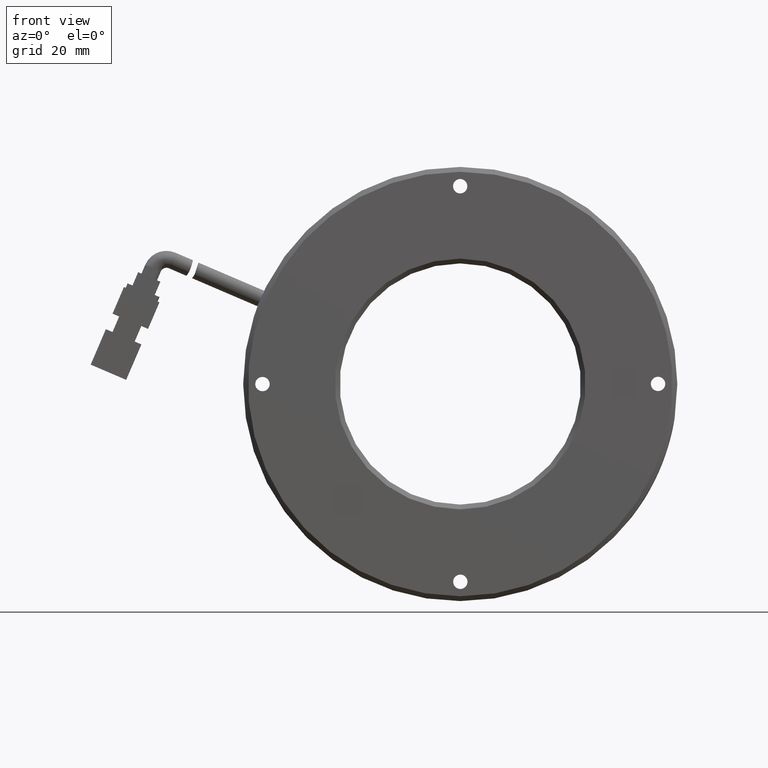
[diagram: clean part render]
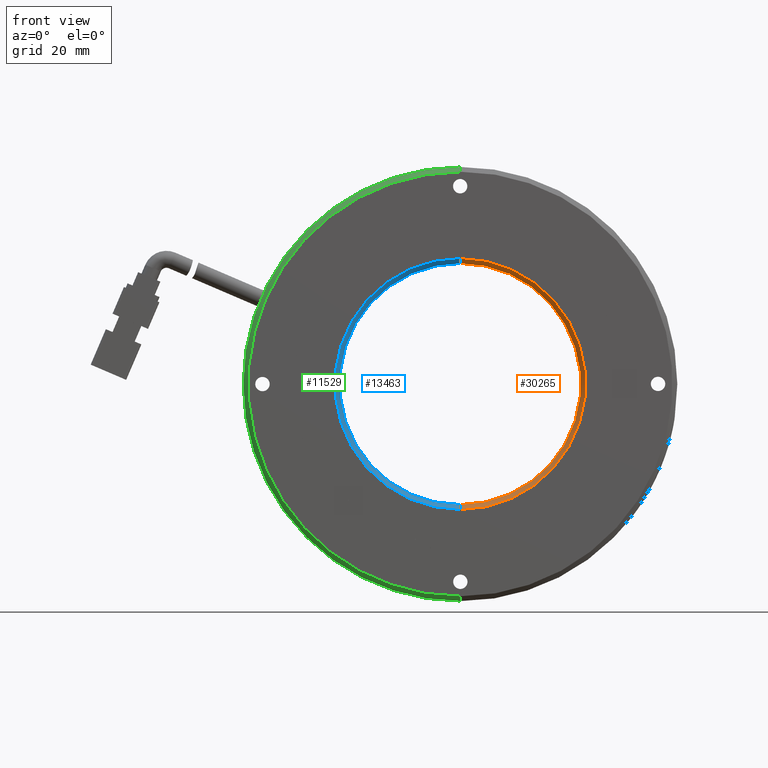
[diagram: same view with three faces highlighted in distinct colors, each labeled with its STEP entity id]
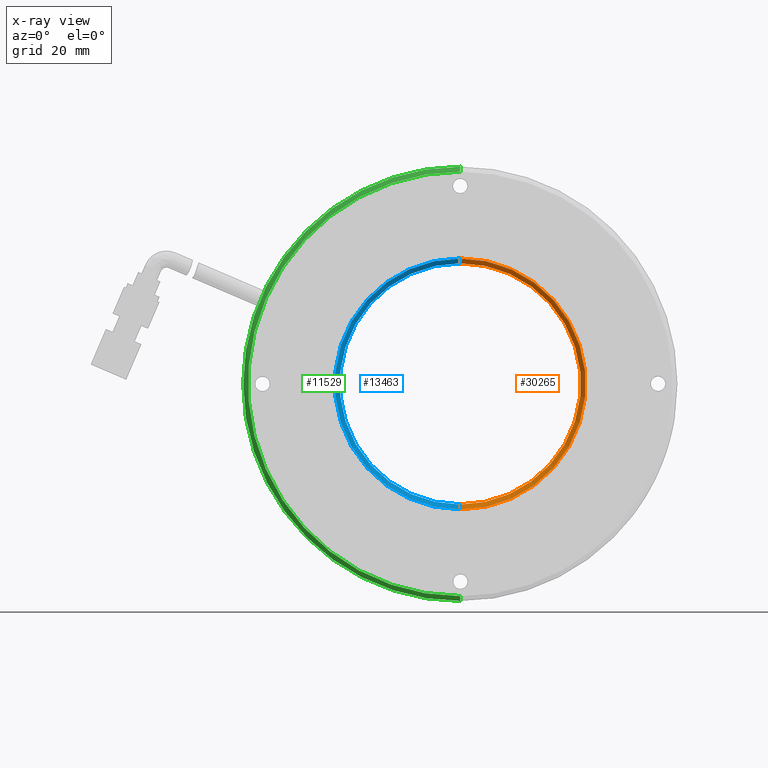
[diagram: x-ray of the same camera — body ghosted, the three highlighted faces saturated]
A machine part, front view with three faces highlighted in distinct colors.
The next image is the same camera in x-ray (body ghosted, the three faces saturated) — at least one of them is partly hidden behind the body in this view.
Their STEP definitions:

[orange] entity #30265 — the highlighted conical surface has half-angle 45 deg.
#2082 = VECTOR ( 'NONE', #17830, 1000.000000000000000 ) ;
#4259 = CARTESIAN_POINT ( 'NONE',  ( 3.571428571428568500, -0.3764478764478815200, 25.00000000000000000 ) ) ;
#4889 = CARTESIAN_POINT ( 'NONE',  ( 3.571428571428568500, -1.376447876447879400, 25.99999999999998200 ) ) ;
#7097 = VERTEX_POINT ( 'NONE', #30295 ) ;
#7134 = EDGE_CURVE ( 'NONE', #32075, #7097, #18878, .T. ) ;
#8187 = DIRECTION ( 'NONE',  ( 8.659560562354857700E-017, -0.7071067811865536800, 0.7071067811865414700 ) ) ;
#11405 = LINE ( 'NONE', #40071, #2082 ) ;
#11937 = CARTESIAN_POINT ( 'NONE',  ( 3.571428571428565800, -0.3764478764478815200, 0.0000000000000000000 ) ) ;
#12489 = DIRECTION ( 'NONE',  ( 0.0000000000000000000, -1.000000000000000000, 0.0000000000000000000 ) ) ;
#12859 = AXIS2_PLACEMENT_3D ( 'NONE', #37086, #18137, #40227 ) ;
#15088 = DIRECTION ( 'NONE',  ( 0.0000000000000000000, -3.469446951953614200E-017, -1.000000000000000000 ) ) ;
#15972 = ORIENTED_EDGE ( 'NONE', *, *, #22853, .T. ) ;
#17387 = AXIS2_PLACEMENT_3D ( 'NONE', #25058, #12489, #25192 ) ;
#17830 = DIRECTION ( 'NONE',  ( 0.0000000000000000000, -0.7071067811865536800, -0.7071067811865414700 ) ) ;
#17882 = VECTOR ( 'NONE', #8187, 1000.000000000000000 ) ;
#18137 = DIRECTION ( 'NONE',  ( 0.0000000000000000000, -1.000000000000000000, 0.0000000000000000000 ) ) ;
#18799 = ORIENTED_EDGE ( 'NONE', *, *, #20752, .F. ) ;
#18878 = LINE ( 'NONE', #4889, #17882 ) ;
#19963 = VERTEX_POINT ( 'NONE', #30981 ) ;
#20752 = EDGE_CURVE ( 'NONE', #22184, #32075, #34404, .T. ) ;
#22184 = VERTEX_POINT ( 'NONE', #26959 ) ;
#22853 = EDGE_CURVE ( 'NONE', #19963, #7097, #25587, .T. ) ;
#24324 = CONICAL_SURFACE ( 'NONE', #17387, 25.99999999999998200, 0.7853981633974396200 ) ;
#25058 = CARTESIAN_POINT ( 'NONE',  ( 3.571428571428565800, -1.376447876447879400, 0.0000000000000000000 ) ) ;
#25192 = DIRECTION ( 'NONE',  ( 0.0000000000000000000, 0.0000000000000000000, -1.000000000000000000 ) ) ;
#25587 = CIRCLE ( 'NONE', #12859, 25.99999999999998200 ) ;
#26959 = CARTESIAN_POINT ( 'NONE',  ( 3.571428571428565800, -0.3764478764478824100, -25.00000000000000000 ) ) ;
#28936 = AXIS2_PLACEMENT_3D ( 'NONE', #11937, #34054, #15088 ) ;
#29640 = ORIENTED_EDGE ( 'NONE', *, *, #7134, .F. ) ;
#30265 = ADVANCED_FACE ( 'NONE', ( #36699 ), #24324, .F. ) ;
#30295 = CARTESIAN_POINT ( 'NONE',  ( 3.571428571428568500, -1.376447876447878900, 25.99999999999998200 ) ) ;
#30981 = CARTESIAN_POINT ( 'NONE',  ( 3.571428571428565800, -1.376447876447878900, -25.99999999999998200 ) ) ;
#32075 = VERTEX_POINT ( 'NONE', #4259 ) ;
#34054 = DIRECTION ( 'NONE',  ( 0.0000000000000000000, -1.000000000000000000, 0.0000000000000000000 ) ) ;
#34404 = CIRCLE ( 'NONE', #28936, 25.00000000000000000 ) ;
#34485 = EDGE_CURVE ( 'NONE', #22184, #19963, #11405, .T. ) ;
#36699 = FACE_OUTER_BOUND ( 'NONE', #38954, .T. ) ;
#36871 = ORIENTED_EDGE ( 'NONE', *, *, #34485, .T. ) ;
#37086 = CARTESIAN_POINT ( 'NONE',  ( 3.571428571428565800, -1.376447876447878900, 0.0000000000000000000 ) ) ;
#38954 = EDGE_LOOP ( 'NONE', ( #29640, #18799, #36871, #15972 ) ) ;
#40071 = CARTESIAN_POINT ( 'NONE',  ( 3.571428571428565800, -1.376447876447879400, -25.99999999999998200 ) ) ;
#40227 = DIRECTION ( 'NONE',  ( 0.0000000000000000000, 0.0000000000000000000, -1.000000000000000000 ) ) ;

[blue] entity #13463 — the highlighted conical surface has half-angle 45 deg.
#439 = EDGE_LOOP ( 'NONE', ( #31246, #38641, #674, #11110 ) ) ;
#647 = AXIS2_PLACEMENT_3D ( 'NONE', #16297, #13178, #10140 ) ;
#674 = ORIENTED_EDGE ( 'NONE', *, *, #34959, .T. ) ;
#1350 = DIRECTION ( 'NONE',  ( 0.0000000000000000000, 0.0000000000000000000, -1.000000000000000000 ) ) ;
#2082 = VECTOR ( 'NONE', #17830, 1000.000000000000000 ) ;
#2488 = CIRCLE ( 'NONE', #7452, 25.00000000000000000 ) ;
#4259 = CARTESIAN_POINT ( 'NONE',  ( 3.571428571428568500, -0.3764478764478815200, 25.00000000000000000 ) ) ;
#4889 = CARTESIAN_POINT ( 'NONE',  ( 3.571428571428568500, -1.376447876447879400, 25.99999999999998200 ) ) ;
#5566 = AXIS2_PLACEMENT_3D ( 'NONE', #39054, #20121, #1350 ) ;
#7097 = VERTEX_POINT ( 'NONE', #30295 ) ;
#7134 = EDGE_CURVE ( 'NONE', #32075, #7097, #18878, .T. ) ;
#7452 = AXIS2_PLACEMENT_3D ( 'NONE', #30707, #11745, #33876 ) ;
#8187 = DIRECTION ( 'NONE',  ( 8.659560562354857700E-017, -0.7071067811865536800, 0.7071067811865414700 ) ) ;
#10140 = DIRECTION ( 'NONE',  ( 0.0000000000000000000, 0.0000000000000000000, -1.000000000000000000 ) ) ;
#11110 = ORIENTED_EDGE ( 'NONE', *, *, #34485, .F. ) ;
#11405 = LINE ( 'NONE', #40071, #2082 ) ;
#11745 = DIRECTION ( 'NONE',  ( 0.0000000000000000000, -1.000000000000000000, 0.0000000000000000000 ) ) ;
#12161 = CONICAL_SURFACE ( 'NONE', #647, 25.99999999999998200, 0.7853981633974396200 ) ;
#13178 = DIRECTION ( 'NONE',  ( 0.0000000000000000000, -1.000000000000000000, 0.0000000000000000000 ) ) ;
#13463 = ADVANCED_FACE ( 'NONE', ( #32928 ), #12161, .F. ) ;
#16297 = CARTESIAN_POINT ( 'NONE',  ( 3.571428571428565800, -1.376447876447879400, 0.0000000000000000000 ) ) ;
#17830 = DIRECTION ( 'NONE',  ( 0.0000000000000000000, -0.7071067811865536800, -0.7071067811865414700 ) ) ;
#17882 = VECTOR ( 'NONE', #8187, 1000.000000000000000 ) ;
#18878 = LINE ( 'NONE', #4889, #17882 ) ;
#19963 = VERTEX_POINT ( 'NONE', #30981 ) ;
#20121 = DIRECTION ( 'NONE',  ( 0.0000000000000000000, -1.000000000000000000, 0.0000000000000000000 ) ) ;
#22184 = VERTEX_POINT ( 'NONE', #26959 ) ;
#26959 = CARTESIAN_POINT ( 'NONE',  ( 3.571428571428565800, -0.3764478764478824100, -25.00000000000000000 ) ) ;
#30295 = CARTESIAN_POINT ( 'NONE',  ( 3.571428571428568500, -1.376447876447878900, 25.99999999999998200 ) ) ;
#30707 = CARTESIAN_POINT ( 'NONE',  ( 3.571428571428565800, -0.3764478764478815200, 0.0000000000000000000 ) ) ;
#30981 = CARTESIAN_POINT ( 'NONE',  ( 3.571428571428565800, -1.376447876447878900, -25.99999999999998200 ) ) ;
#31246 = ORIENTED_EDGE ( 'NONE', *, *, #35144, .F. ) ;
#32075 = VERTEX_POINT ( 'NONE', #4259 ) ;
#32928 = FACE_OUTER_BOUND ( 'NONE', #439, .T. ) ;
#33876 = DIRECTION ( 'NONE',  ( 0.0000000000000000000, -3.469446951953614200E-017, -1.000000000000000000 ) ) ;
#34485 = EDGE_CURVE ( 'NONE', #22184, #19963, #11405, .T. ) ;
#34959 = EDGE_CURVE ( 'NONE', #7097, #19963, #39439, .T. ) ;
#35144 = EDGE_CURVE ( 'NONE', #32075, #22184, #2488, .T. ) ;
#38641 = ORIENTED_EDGE ( 'NONE', *, *, #7134, .T. ) ;
#39054 = CARTESIAN_POINT ( 'NONE',  ( 3.571428571428565800, -1.376447876447878900, 0.0000000000000000000 ) ) ;
#39439 = CIRCLE ( 'NONE', #5566, 25.99999999999998200 ) ;
#40071 = CARTESIAN_POINT ( 'NONE',  ( 3.571428571428565800, -1.376447876447879400, -25.99999999999998200 ) ) ;

[green] entity #11529 — the highlighted conical surface has half-angle 45 deg.
#3393 = DIRECTION ( 'NONE',  ( 0.0000000000000000000, 0.7071067811865526800, 0.7071067811865423500 ) ) ;
#4569 = VERTEX_POINT ( 'NONE', #24271 ) ;
#5408 = EDGE_CURVE ( 'NONE', #15334, #18380, #7289, .T. ) ;
#6604 = AXIS2_PLACEMENT_3D ( 'NONE', #33581, #14483, #14607 ) ;
#6973 = CIRCLE ( 'NONE', #33793, 44.99999999999999300 ) ;
#7289 = CIRCLE ( 'NONE', #31507, 44.00000000000000000 ) ;
#7478 = VECTOR ( 'NONE', #13320, 1000.000000000000000 ) ;
#8445 = DIRECTION ( 'NONE',  ( -0.0000000000000000000, -1.000000000000000000, -0.0000000000000000000 ) ) ;
#8838 = ORIENTED_EDGE ( 'NONE', *, *, #37006, .T. ) ;
#9058 = FACE_OUTER_BOUND ( 'NONE', #31148, .T. ) ;
#9626 = ORIENTED_EDGE ( 'NONE', *, *, #15716, .T. ) ;
#9657 = CARTESIAN_POINT ( 'NONE',  ( 3.571428571428565800, -1.376447876447878900, 44.00000000000000000 ) ) ;
#11529 = ADVANCED_FACE ( 'NONE', ( #9058 ), #37676, .T. ) ;
#13320 = DIRECTION ( 'NONE',  ( 8.659560562354870000E-017, 0.7071067811865526800, -0.7071067811865423500 ) ) ;
#13965 = DIRECTION ( 'NONE',  ( -0.0000000000000000000, 1.000000000000000000, 0.0000000000000000000 ) ) ;
#14014 = CARTESIAN_POINT ( 'NONE',  ( 3.571428571428565800, -1.376447876447878900, 0.0000000000000000000 ) ) ;
#14483 = DIRECTION ( 'NONE',  ( -0.0000000000000000000, 1.000000000000000000, 0.0000000000000000000 ) ) ;
#14607 = DIRECTION ( 'NONE',  ( 0.0000000000000000000, 0.0000000000000000000, 1.000000000000000000 ) ) ;
#15334 = VERTEX_POINT ( 'NONE', #39478 ) ;
#15360 = ORIENTED_EDGE ( 'NONE', *, *, #34262, .F. ) ;
#15716 = EDGE_CURVE ( 'NONE', #18380, #32443, #29662, .T. ) ;
#15825 = LINE ( 'NONE', #23227, #7478 ) ;
#18380 = VERTEX_POINT ( 'NONE', #9657 ) ;
#23041 = CARTESIAN_POINT ( 'NONE',  ( 3.571428571428571200, -0.3764478764478641500, 45.00000000000000000 ) ) ;
#23227 = CARTESIAN_POINT ( 'NONE',  ( 3.571428571428571200, -0.3764478764478635400, -45.00000000000000000 ) ) ;
#24271 = CARTESIAN_POINT ( 'NONE',  ( 3.571428571428565800, -0.3764478764478641500, -45.00000000000000000 ) ) ;
#27386 = CARTESIAN_POINT ( 'NONE',  ( 3.571428571428565800, -0.3764478764478641500, 0.0000000000000000000 ) ) ;
#28635 = CARTESIAN_POINT ( 'NONE',  ( 3.571428571428565800, -0.3764478764478635400, 45.00000000000000000 ) ) ;
#28709 = ORIENTED_EDGE ( 'NONE', *, *, #5408, .T. ) ;
#29662 = LINE ( 'NONE', #28635, #37053 ) ;
#30557 = DIRECTION ( 'NONE',  ( 0.0000000000000000000, 3.373073425510458600E-017, 1.000000000000000000 ) ) ;
#31148 = EDGE_LOOP ( 'NONE', ( #15360, #28709, #9626, #8838 ) ) ;
#31507 = AXIS2_PLACEMENT_3D ( 'NONE', #14014, #13965, #31938 ) ;
#31938 = DIRECTION ( 'NONE',  ( 0.0000000000000000000, 0.0000000000000000000, 1.000000000000000000 ) ) ;
#32443 = VERTEX_POINT ( 'NONE', #23041 ) ;
#33581 = CARTESIAN_POINT ( 'NONE',  ( 3.571428571428565800, -0.3764478764478635400, 0.0000000000000000000 ) ) ;
#33793 = AXIS2_PLACEMENT_3D ( 'NONE', #27386, #8445, #30557 ) ;
#34262 = EDGE_CURVE ( 'NONE', #15334, #4569, #15825, .T. ) ;
#37006 = EDGE_CURVE ( 'NONE', #32443, #4569, #6973, .T. ) ;
#37053 = VECTOR ( 'NONE', #3393, 1000.000000000000000 ) ;
#37676 = CONICAL_SURFACE ( 'NONE', #6604, 45.00000000000000000, 0.7853981633974410600 ) ;
#39478 = CARTESIAN_POINT ( 'NONE',  ( 3.571428571428570700, -1.376447876447878900, -44.00000000000000000 ) ) ;